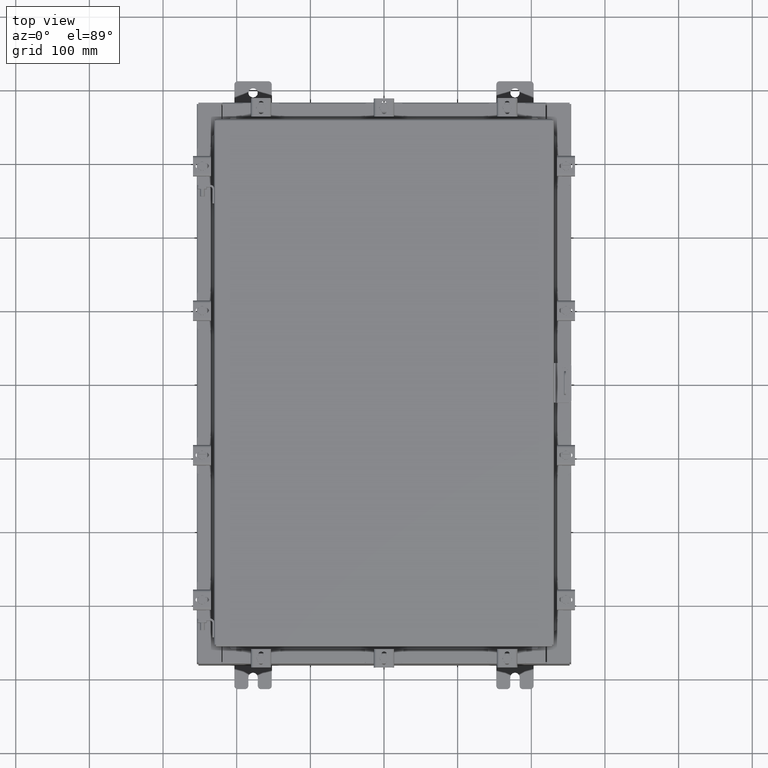
[diagram: clean part render]
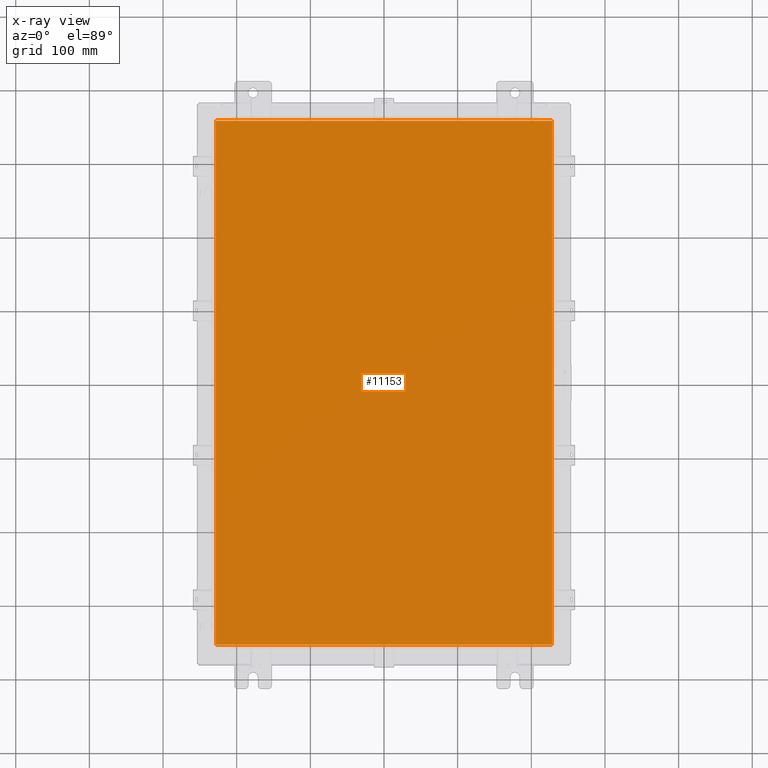
[diagram: x-ray — body ghosted, one internal face saturated and labeled with its STEP entity id]
A machine part, top view, then the same camera in x-ray: the body is ghosted and one INTERNAL B-rep face — a face not visible from any outside direction — is saturated and labeled: STEP entity #11153.
In plain terms, the highlighted planar face has unit normal (0, 0, -1).
Its self-contained STEP definition (entity closure, byte-faithful):
#412 = EDGE_CURVE ( 'NONE', #20465, #20190, #12452, .T. ) ;
#552 = ORIENTED_EDGE ( 'NONE', *, *, #4240, .F. ) ;
#1592 = LINE ( 'NONE', #18822, #19544 ) ;
#1650 = PLANE ( 'NONE',  #11131 ) ;
#3313 = ORIENTED_EDGE ( 'NONE', *, *, #22106, .F. ) ;
#3470 = CARTESIAN_POINT ( 'NONE',  ( 0.0000000000000000000, 0.0000000000000000000, -0.07470000000000000300 ) ) ;
#3662 = CARTESIAN_POINT ( 'NONE',  ( 8.990300000000001300, -14.00629999999999800, -0.07470000000000000300 ) ) ;
#4240 = EDGE_CURVE ( 'NONE', #9154, #17424, #16477, .T. ) ;
#4663 = LINE ( 'NONE', #13262, #13648 ) ;
#7437 = EDGE_LOOP ( 'NONE', ( #3313, #552, #14208, #8173 ) ) ;
#8171 = DIRECTION ( 'NONE',  ( 1.000000000000000000, -0.0000000000000000000, -0.0000000000000000000 ) ) ;
#8173 = ORIENTED_EDGE ( 'NONE', *, *, #412, .F. ) ;
#8914 = DIRECTION ( 'NONE',  ( 0.0000000000000000000, 0.0000000000000000000, -1.000000000000000000 ) ) ;
#9154 = VERTEX_POINT ( 'NONE', #16646 ) ;
#10449 = FACE_OUTER_BOUND ( 'NONE', #7437, .T. ) ;
#11131 = AXIS2_PLACEMENT_3D ( 'NONE', #3470, #8914, #21394 ) ;
#11153 = ADVANCED_FACE ( 'NONE', ( #10449 ), #1650, .T. ) ;
#11481 = DIRECTION ( 'NONE',  ( 0.0000000000000000000, -1.000000000000000000, 0.0000000000000000000 ) ) ;
#11711 = VECTOR ( 'NONE', #8171, 39.37007874015748100 ) ;
#11870 = VECTOR ( 'NONE', #17560, 39.37007874015748100 ) ;
#12452 = LINE ( 'NONE', #13987, #11870 ) ;
#13262 = CARTESIAN_POINT ( 'NONE',  ( -8.990299999999997700, 14.00630000000000100, -0.07470000000000019700 ) ) ;
#13648 = VECTOR ( 'NONE', #11481, 39.37007874015748100 ) ;
#13987 = CARTESIAN_POINT ( 'NONE',  ( 8.990300000000001300, 14.00629999999999800, -0.07470000000000019700 ) ) ;
#14208 = ORIENTED_EDGE ( 'NONE', *, *, #22688, .F. ) ;
#14736 = CARTESIAN_POINT ( 'NONE',  ( 8.990300000000001300, 14.00629999999999800, -0.07470000000000000300 ) ) ;
#16477 = LINE ( 'NONE', #17012, #11711 ) ;
#16646 = CARTESIAN_POINT ( 'NONE',  ( -8.990299999999996000, -14.00629999999999600, -0.07470000000000000300 ) ) ;
#16959 = DIRECTION ( 'NONE',  ( 0.0000000000000000000, 1.000000000000000000, 0.0000000000000000000 ) ) ;
#17012 = CARTESIAN_POINT ( 'NONE',  ( -8.990299999999996000, -14.00629999999999800, -0.07469999999999800400 ) ) ;
#17424 = VERTEX_POINT ( 'NONE', #3662 ) ;
#17560 = DIRECTION ( 'NONE',  ( -1.000000000000000000, -0.0000000000000000000, -0.0000000000000000000 ) ) ;
#18822 = CARTESIAN_POINT ( 'NONE',  ( 8.990300000000001300, -14.00629999999999800, -0.07470000000000019700 ) ) ;
#19295 = CARTESIAN_POINT ( 'NONE',  ( -8.990299999999997700, 14.00629999999999800, -0.07470000000000000300 ) ) ;
#19544 = VECTOR ( 'NONE', #16959, 39.37007874015748100 ) ;
#20190 = VERTEX_POINT ( 'NONE', #19295 ) ;
#20465 = VERTEX_POINT ( 'NONE', #14736 ) ;
#21394 = DIRECTION ( 'NONE',  ( -1.000000000000000000, 0.0000000000000000000, -0.0000000000000000000 ) ) ;
#22106 = EDGE_CURVE ( 'NONE', #17424, #20465, #1592, .T. ) ;
#22688 = EDGE_CURVE ( 'NONE', #20190, #9154, #4663, .T. ) ;